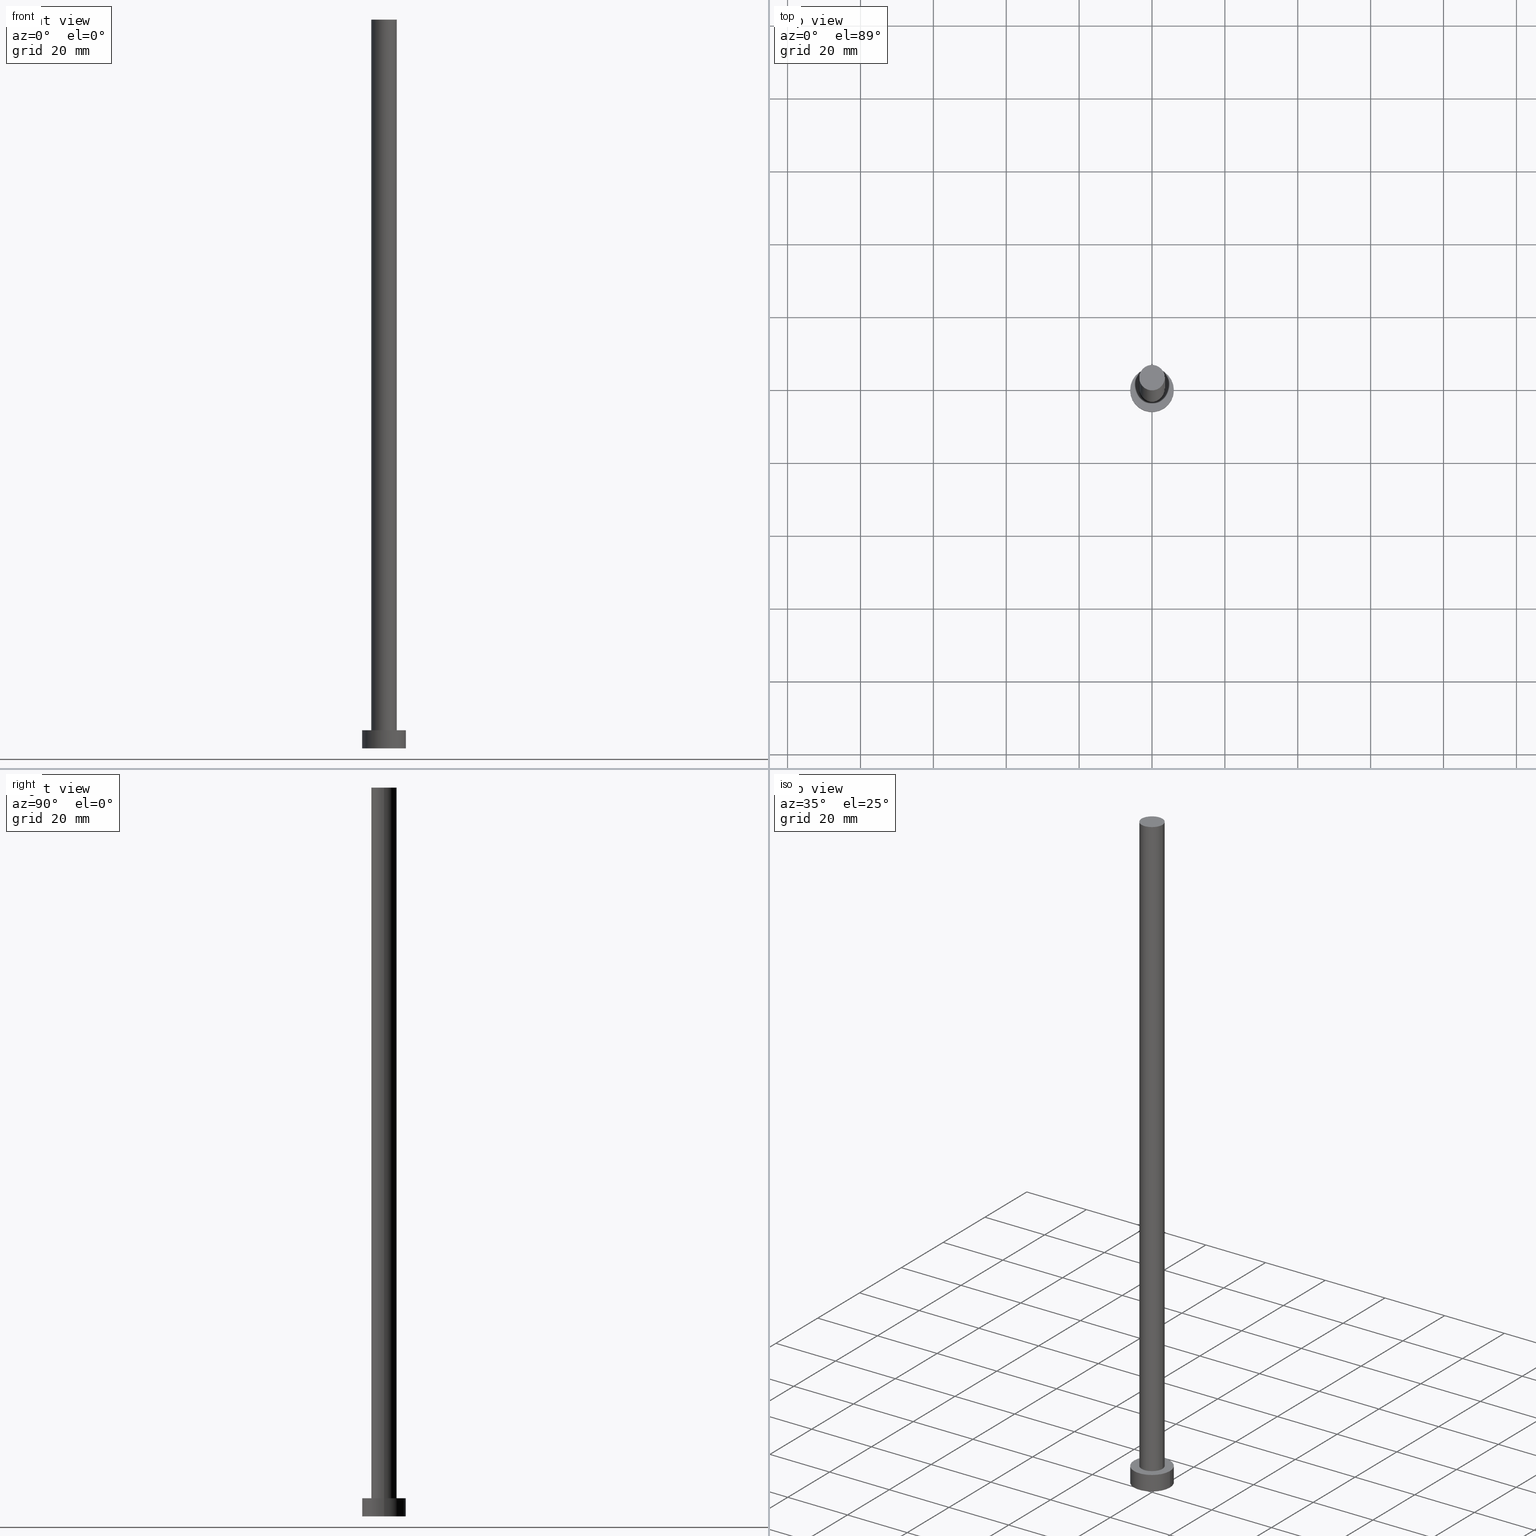
[diagram: canonical four-view strip — front | top / right | iso, engineering-drawing reading convention]
A machine part, canonical four-view strip (front | top / right | iso — engineering-drawing reading convention). The complete STEP part file that produces these views, byte-faithful:
ISO-10303-21;
HEADER;
FILE_DESCRIPTION (( 'STEP AP203' ),
    '1' );
FILE_NAME ('a7fd.STEP',
    '2023-02-13T11:46:37',
    ( '' ),
    ( '' ),
    'SwSTEP 2.0',
    'SolidWorks 2019',
    '' );
FILE_SCHEMA (( 'CONFIG_CONTROL_DESIGN' ));
ENDSEC;

DATA;
#1 = DATE_TIME_ROLE ( 'creation_date' ) ;
#2 = ADVANCED_FACE ( 'NONE', ( #198 ), #80, .F. ) ;
#3 = LOCAL_TIME ( 12, 46, 37.00000000000000000, #124 ) ;
#4 = APPLICATION_CONTEXT ( 'configuration controlled 3d designs of mechanical parts and assemblies' ) ;
#5 = ADVANCED_FACE ( 'NONE', ( #148 ), #231, .T. ) ;
#6 = VECTOR ( 'NONE', #192, 1000.000000000000000 ) ;
#7 = VECTOR ( 'NONE', #95, 1000.000000000000000 ) ;
#8 = COORDINATED_UNIVERSAL_TIME_OFFSET ( 1, 0, .AHEAD. ) ;
#9 = EDGE_CURVE ( 'NONE', #247, #106, #165, .T. ) ;
#10 = COORDINATED_UNIVERSAL_TIME_OFFSET ( 1, 0, .AHEAD. ) ;
#11 = DIRECTION ( 'NONE',  ( 1.000000000000000000, 0.000000000000000000, 0.000000000000000000 ) ) ;
#12 = ORIENTED_EDGE ( 'NONE', *, *, #37, .F. ) ;
#13 = ORIENTED_EDGE ( 'NONE', *, *, #224, .F. ) ;
#14 = CARTESIAN_POINT ( 'NONE',  ( -3.500000000000000000, 0.000000000000000000, 200.0000000000000000 ) ) ;
#15 = CARTESIAN_POINT ( 'NONE',  ( 0.000000000000000000, 0.000000000000000000, 200.0000000000000000 ) ) ;
#16 = VECTOR ( 'NONE', #97, 1000.000000000000000 ) ;
#17 = MECHANICAL_CONTEXT ( 'NONE', #4, 'mechanical' ) ;
#18 = EDGE_LOOP ( 'NONE', ( #39, #12, #77, #28 ) ) ;
#19 = FACE_OUTER_BOUND ( 'NONE', #131, .T. ) ;
#20 = DIRECTION ( 'NONE',  ( -0.000000000000000000, -0.000000000000000000, -1.000000000000000000 ) ) ;
#21 = APPROVAL_DATE_TIME ( #100, #133 ) ;
#22 = APPROVAL_DATE_TIME ( #42, #60 ) ;
#23 = PERSON_AND_ORGANIZATION_ROLE ( 'creator' ) ;
#24 = CIRCLE ( 'NONE', #225, 6.000000000000000888 ) ;
#25 = CARTESIAN_POINT ( 'NONE',  ( 0.000000000000000000, 0.000000000000000000, 0.000000000000000000 ) ) ;
#26 = EDGE_CURVE ( 'NONE', #93, #106, #212, .T. ) ;
#27 = PLANE ( 'NONE',  #45 ) ;
#28 = ORIENTED_EDGE ( 'NONE', *, *, #9, .T. ) ;
#29 = CIRCLE ( 'NONE', #104, 6.000000000000000888 ) ;
#30 = CARTESIAN_POINT ( 'NONE',  ( 0.000000000000000000, 0.000000000000000000, 200.0000000000000000 ) ) ;
#31 = EDGE_CURVE ( 'NONE', #233, #111, #175, .T. ) ;
#32 = FACE_OUTER_BOUND ( 'NONE', #197, .T. ) ;
#33 = CARTESIAN_POINT ( 'NONE',  ( 0.000000000000000000, 0.000000000000000000, 5.000000000000000000 ) ) ;
#34 = CALENDAR_DATE ( 2023, 13, 2 ) ;
#35 = EDGE_LOOP ( 'NONE', ( #245, #157 ) ) ;
#36 = SHAPE_DEFINITION_REPRESENTATION ( #223, #65 ) ;
#37 = EDGE_CURVE ( 'NONE', #150, #93, #66, .T. ) ;
#38 = APPROVAL_ROLE ( '' ) ;
#39 = ORIENTED_EDGE ( 'NONE', *, *, #26, .F. ) ;
#40 = LOCAL_TIME ( 12, 46, 37.00000000000000000, #10 ) ;
#41 = DIRECTION ( 'NONE',  ( 1.000000000000000000, 0.000000000000000000, 0.000000000000000000 ) ) ;
#42 = DATE_AND_TIME ( #144, #219 ) ;
#43 = AXIS2_PLACEMENT_3D ( 'NONE', #173, #228, #46 ) ;
#44 = ADVANCED_FACE ( 'NONE', ( #19 ), #205, .T. ) ;
#45 = AXIS2_PLACEMENT_3D ( 'NONE', #149, #153, #172 ) ;
#46 = DIRECTION ( 'NONE',  ( 1.000000000000000000, 0.000000000000000000, 0.000000000000000000 ) ) ;
#47 = ORIENTED_EDGE ( 'NONE', *, *, #174, .F. ) ;
#48 = LINE ( 'NONE', #89, #7 ) ;
#49 = EDGE_CURVE ( 'NONE', #139, #233, #244, .T. ) ;
#50 = DIRECTION ( 'NONE',  ( 0.000000000000000000, 0.000000000000000000, 1.000000000000000000 ) ) ;
#51 = CARTESIAN_POINT ( 'NONE',  ( 3.500000000000000000, 4.286263797015736595E-16, 200.0000000000000000 ) ) ;
#52 = ORIENTED_EDGE ( 'NONE', *, *, #85, .T. ) ;
#53 = CIRCLE ( 'NONE', #119, 3.500000000000000000 ) ;
#54 = APPLICATION_CONTEXT ( 'configuration controlled 3d designs of mechanical parts and assemblies' ) ;
#55 = LINE ( 'NONE', #151, #101 ) ;
#56 = ORIENTED_EDGE ( 'NONE', *, *, #91, .F. ) ;
#57 = PERSON_AND_ORGANIZATION ( #96, #188 ) ;
#58 = EDGE_LOOP ( 'NONE', ( #13, #47, #250, #138 ) ) ;
#59 = PERSON_AND_ORGANIZATION_ROLE ( 'creator' ) ;
#60 = APPROVAL ( #255, 'NEUR�EN�' ) ;
#61 = CALENDAR_DATE ( 2023, 13, 2 ) ;
#62 = PERSON_AND_ORGANIZATION ( #96, #188 ) ;
#63 = LOCAL_TIME ( 12, 46, 37.00000000000000000, #8 ) ;
#64 = UNCERTAINTY_MEASURE_WITH_UNIT (LENGTH_MEASURE( 1.000000000000000082E-05 ), #234, 'distance_accuracy_value', 'NONE');
#65 = ADVANCED_BREP_SHAPE_REPRESENTATION ( 'a7fd', ( #81, #43 ), #182 ) ;
#66 = CIRCLE ( 'NONE', #217, 3.500000000000000000 ) ;
#67 = CLOSED_SHELL ( 'NONE', ( #44, #5, #120, #129, #2, #76, #160 ) ) ;
#68 = DIRECTION ( 'NONE',  ( -0.000000000000000000, -0.000000000000000000, -1.000000000000000000 ) ) ;
#69 = CC_DESIGN_APPROVAL ( #133, ( #147 ) ) ;
#70 = CC_DESIGN_PERSON_AND_ORGANIZATION_ASSIGNMENT ( #128, #208, ( #147 ) ) ;
#71 = FACE_OUTER_BOUND ( 'NONE', #58, .T. ) ;
#72 = ORIENTED_EDGE ( 'NONE', *, *, #9, .F. ) ;
#73 =( NAMED_UNIT ( * ) SI_UNIT ( $, .STERADIAN. ) SOLID_ANGLE_UNIT ( ) );
#74 = ORIENTED_EDGE ( 'NONE', *, *, #195, .F. ) ;
#75 = AXIS2_PLACEMENT_3D ( 'NONE', #102, #123, #203 ) ;
#76 = ADVANCED_FACE ( 'NONE', ( #161 ), #200, .T. ) ;
#77 = ORIENTED_EDGE ( 'NONE', *, *, #91, .T. ) ;
#78 = APPROVAL_PERSON_ORGANIZATION ( #155, #133, #158 ) ;
#79 = DIRECTION ( 'NONE',  ( -0.000000000000000000, -0.000000000000000000, -1.000000000000000000 ) ) ;
#80 = PLANE ( 'NONE',  #241 ) ;
#81 = MANIFOLD_SOLID_BREP ( 'P�idat vysunut�m3', #67 ) ;
#82 = EDGE_CURVE ( 'NONE', #111, #237, #152, .T. ) ;
#83 = DIRECTION ( 'NONE',  ( -1.000000000000000000, 0.000000000000000000, 0.000000000000000000 ) ) ;
#84 = PERSON_AND_ORGANIZATION ( #96, #188 ) ;
#85 = EDGE_CURVE ( 'NONE', #237, #111, #29, .T. ) ;
#86 = APPROVAL_PERSON_ORGANIZATION ( #84, #180, #239 ) ;
#87 = AXIS2_PLACEMENT_3D ( 'NONE', #184, #177, #41 ) ;
#88 = CC_DESIGN_SECURITY_CLASSIFICATION ( #147, ( #199 ) ) ;
#89 = CARTESIAN_POINT ( 'NONE',  ( 6.000000000000000888, 7.347880794884120722E-16, 5.000000000000000000 ) ) ;
#90 = DIRECTION ( 'NONE',  ( 1.000000000000000000, 0.000000000000000000, -0.000000000000000000 ) ) ;
#91 = EDGE_CURVE ( 'NONE', #150, #247, #55, .T. ) ;
#92 = APPLICATION_PROTOCOL_DEFINITION ( 'international standard', 'config_control_design', 1994, #4 ) ;
#93 = VERTEX_POINT ( 'NONE', #51 ) ;
#94 = EDGE_LOOP ( 'NONE', ( #72, #154 ) ) ;
#95 = DIRECTION ( 'NONE',  ( -0.000000000000000000, -0.000000000000000000, -1.000000000000000000 ) ) ;
#96 = PERSON ( 'NEUR�EN�', 'NEUR�EN�', 'NEUR�EN�', ('NEUR�EN�'), ('NEUR�EN�'), ('NEUR�EN�') ) ;
#97 = DIRECTION ( 'NONE',  ( -0.000000000000000000, -0.000000000000000000, -1.000000000000000000 ) ) ;
#98 = DIRECTION ( 'NONE',  ( 0.000000000000000000, 0.000000000000000000, 1.000000000000000000 ) ) ;
#99 = CARTESIAN_POINT ( 'NONE',  ( 0.000000000000000000, 0.000000000000000000, 0.000000000000000000 ) ) ;
#100 = DATE_AND_TIME ( #34, #40 ) ;
#101 = VECTOR ( 'NONE', #168, 1000.000000000000000 ) ;
#102 = CARTESIAN_POINT ( 'NONE',  ( 0.000000000000000000, 0.000000000000000000, 0.000000000000000000 ) ) ;
#103 = CC_DESIGN_APPROVAL ( #180, ( #199 ) ) ;
#104 = AXIS2_PLACEMENT_3D ( 'NONE', #25, #105, #226 ) ;
#105 = DIRECTION ( 'NONE',  ( 0.000000000000000000, 0.000000000000000000, 1.000000000000000000 ) ) ;
#106 = VERTEX_POINT ( 'NONE', #110 ) ;
#107 = AXIS2_PLACEMENT_3D ( 'NONE', #130, #137, #193 ) ;
#108 = DATE_AND_TIME ( #220, #63 ) ;
#109 = CARTESIAN_POINT ( 'NONE',  ( 0.000000000000000000, 0.000000000000000000, 5.000000000000000000 ) ) ;
#110 = CARTESIAN_POINT ( 'NONE',  ( 3.500000000000000000, 4.286263797015736595E-16, 5.000000000000000000 ) ) ;
#111 = VERTEX_POINT ( 'NONE', #135 ) ;
#112 = DIRECTION ( 'NONE',  ( 1.000000000000000000, 0.000000000000000000, -0.000000000000000000 ) ) ;
#113 = CARTESIAN_POINT ( 'NONE',  ( -6.000000000000000888, 0.000000000000000000, 5.000000000000000000 ) ) ;
#114 = CARTESIAN_POINT ( 'NONE',  ( 6.000000000000000888, 7.347880794884120722E-16, 5.000000000000000000 ) ) ;
#115 = DIRECTION ( 'NONE',  ( -1.000000000000000000, 0.000000000000000000, 0.000000000000000000 ) ) ;
#116 = ORIENTED_EDGE ( 'NONE', *, *, #207, .T. ) ;
#117 = COORDINATED_UNIVERSAL_TIME_OFFSET ( 1, 0, .AHEAD. ) ;
#118 = ORIENTED_EDGE ( 'NONE', *, *, #82, .F. ) ;
#119 = AXIS2_PLACEMENT_3D ( 'NONE', #189, #196, #236 ) ;
#120 = ADVANCED_FACE ( 'NONE', ( #71 ), #246, .T. ) ;
#121 = DATE_TIME_ROLE ( 'classification_date' ) ;
#122 = AXIS2_PLACEMENT_3D ( 'NONE', #141, #143, #142 ) ;
#123 = DIRECTION ( 'NONE',  ( 0.000000000000000000, 0.000000000000000000, 1.000000000000000000 ) ) ;
#124 = COORDINATED_UNIVERSAL_TIME_OFFSET ( 1, 0, .AHEAD. ) ;
#125 = DIRECTION ( 'NONE',  ( 1.000000000000000000, 0.000000000000000000, 0.000000000000000000 ) ) ;
#126 = PERSON_AND_ORGANIZATION_ROLE ( 'design_supplier' ) ;
#127 = DESIGN_CONTEXT ( 'detailed design', #54, 'design' ) ;
#128 = PERSON_AND_ORGANIZATION ( #96, #188 ) ;
#129 = ADVANCED_FACE ( 'NONE', ( #132, #32 ), #27, .T. ) ;
#130 = CARTESIAN_POINT ( 'NONE',  ( 0.000000000000000000, 0.000000000000000000, 5.000000000000000000 ) ) ;
#131 = EDGE_LOOP ( 'NONE', ( #74, #249, #116, #56 ) ) ;
#132 = FACE_BOUND ( 'NONE', #94, .T. ) ;
#133 = APPROVAL ( #215, 'NEUR�EN�' ) ;
#134 = ORIENTED_EDGE ( 'NONE', *, *, #224, .T. ) ;
#135 = CARTESIAN_POINT ( 'NONE',  ( -6.000000000000000888, 0.000000000000000000, 0.000000000000000000 ) ) ;
#136 = ORIENTED_EDGE ( 'NONE', *, *, #31, .F. ) ;
#137 = DIRECTION ( 'NONE',  ( 0.000000000000000000, 0.000000000000000000, 1.000000000000000000 ) ) ;
#138 = ORIENTED_EDGE ( 'NONE', *, *, #82, .T. ) ;
#139 = VERTEX_POINT ( 'NONE', #114 ) ;
#140 = CC_DESIGN_PERSON_AND_ORGANIZATION_ASSIGNMENT ( #202, #59, ( #254 ) ) ;
#141 = CARTESIAN_POINT ( 'NONE',  ( 0.000000000000000000, 0.000000000000000000, 200.0000000000000000 ) ) ;
#142 = DIRECTION ( 'NONE',  ( -1.000000000000000000, 0.000000000000000000, 0.000000000000000000 ) ) ;
#143 = DIRECTION ( 'NONE',  ( -0.000000000000000000, -0.000000000000000000, -1.000000000000000000 ) ) ;
#144 = CALENDAR_DATE ( 2023, 13, 2 ) ;
#145 = LOCAL_TIME ( 12, 46, 37.00000000000000000, #181 ) ;
#146 = CC_DESIGN_DATE_AND_TIME_ASSIGNMENT ( #108, #121, ( #147 ) ) ;
#147 = SECURITY_CLASSIFICATION ( '', '', #166 ) ;
#148 = FACE_OUTER_BOUND ( 'NONE', #216, .T. ) ;
#149 = CARTESIAN_POINT ( 'NONE',  ( 0.000000000000000000, 0.000000000000000000, 5.000000000000000000 ) ) ;
#150 = VERTEX_POINT ( 'NONE', #14 ) ;
#151 = CARTESIAN_POINT ( 'NONE',  ( -3.500000000000000000, 0.000000000000000000, 200.0000000000000000 ) ) ;
#152 = CIRCLE ( 'NONE', #75, 6.000000000000000888 ) ;
#153 = DIRECTION ( 'NONE',  ( 0.000000000000000000, 0.000000000000000000, 1.000000000000000000 ) ) ;
#154 = ORIENTED_EDGE ( 'NONE', *, *, #207, .F. ) ;
#155 = PERSON_AND_ORGANIZATION ( #96, #188 ) ;
#156 = DIRECTION ( 'NONE',  ( 0.000000000000000000, 0.000000000000000000, 1.000000000000000000 ) ) ;
#157 = ORIENTED_EDGE ( 'NONE', *, *, #195, .T. ) ;
#158 = APPROVAL_ROLE ( '' ) ;
#159 = APPLICATION_PROTOCOL_DEFINITION ( 'international standard', 'config_control_design', 1994, #54 ) ;
#160 = ADVANCED_FACE ( 'NONE', ( #213 ), #230, .T. ) ;
#161 = FACE_OUTER_BOUND ( 'NONE', #18, .T. ) ;
#162 = CALENDAR_DATE ( 2023, 13, 2 ) ;
#163 = CC_DESIGN_APPROVAL ( #60, ( #254 ) ) ;
#164 = CC_DESIGN_PERSON_AND_ORGANIZATION_ASSIGNMENT ( #62, #23, ( #199 ) ) ;
#165 = CIRCLE ( 'NONE', #186, 3.500000000000000000 ) ;
#166 = SECURITY_CLASSIFICATION_LEVEL ( 'unclassified' ) ;
#167 = CARTESIAN_POINT ( 'NONE',  ( 6.000000000000000888, 7.347880794884120722E-16, 0.000000000000000000 ) ) ;
#168 = DIRECTION ( 'NONE',  ( -0.000000000000000000, -0.000000000000000000, -1.000000000000000000 ) ) ;
#169 = ORIENTED_EDGE ( 'NONE', *, *, #49, .T. ) ;
#170 =( NAMED_UNIT ( * ) PLANE_ANGLE_UNIT ( ) SI_UNIT ( $, .RADIAN. ) );
#171 = EDGE_LOOP ( 'NONE', ( #118, #235 ) ) ;
#172 = DIRECTION ( 'NONE',  ( 1.000000000000000000, 0.000000000000000000, -0.000000000000000000 ) ) ;
#173 = CARTESIAN_POINT ( 'NONE',  ( 0.000000000000000000, 0.000000000000000000, 0.000000000000000000 ) ) ;
#174 = EDGE_CURVE ( 'NONE', #233, #139, #24, .T. ) ;
#175 = LINE ( 'NONE', #113, #16 ) ;
#176 = DATE_AND_TIME ( #162, #145 ) ;
#177 = DIRECTION ( 'NONE',  ( 0.000000000000000000, 0.000000000000000000, 1.000000000000000000 ) ) ;
#178 = PERSON_AND_ORGANIZATION ( #96, #188 ) ;
#179 = AXIS2_PLACEMENT_3D ( 'NONE', #201, #20, #83 ) ;
#180 = APPROVAL ( #183, 'NEUR�EN�' ) ;
#181 = COORDINATED_UNIVERSAL_TIME_OFFSET ( 1, 0, .AHEAD. ) ;
#182 =( GEOMETRIC_REPRESENTATION_CONTEXT ( 3 ) GLOBAL_UNCERTAINTY_ASSIGNED_CONTEXT ( ( #64 ) ) GLOBAL_UNIT_ASSIGNED_CONTEXT ( ( #234, #170, #73 ) ) REPRESENTATION_CONTEXT ( 'NONE', 'WORKASPACE' ) );
#183 = APPROVAL_STATUS ( 'not_yet_approved' ) ;
#184 = CARTESIAN_POINT ( 'NONE',  ( 0.000000000000000000, 0.000000000000000000, 5.000000000000000000 ) ) ;
#185 = PERSON_AND_ORGANIZATION ( #96, #188 ) ;
#186 = AXIS2_PLACEMENT_3D ( 'NONE', #194, #50, #229 ) ;
#187 = CC_DESIGN_DATE_AND_TIME_ASSIGNMENT ( #176, #1, ( #254 ) ) ;
#188 = ORGANIZATION ( 'NEUR�EN�', 'NEUR�EN�', '' ) ;
#189 = CARTESIAN_POINT ( 'NONE',  ( 0.000000000000000000, 0.000000000000000000, 200.0000000000000000 ) ) ;
#190 = ORIENTED_EDGE ( 'NONE', *, *, #174, .T. ) ;
#191 = CIRCLE ( 'NONE', #107, 3.500000000000000000 ) ;
#192 = DIRECTION ( 'NONE',  ( -0.000000000000000000, -0.000000000000000000, -1.000000000000000000 ) ) ;
#193 = DIRECTION ( 'NONE',  ( 1.000000000000000000, 0.000000000000000000, 0.000000000000000000 ) ) ;
#194 = CARTESIAN_POINT ( 'NONE',  ( 0.000000000000000000, 0.000000000000000000, 5.000000000000000000 ) ) ;
#195 = EDGE_CURVE ( 'NONE', #93, #150, #53, .T. ) ;
#196 = DIRECTION ( 'NONE',  ( 0.000000000000000000, 0.000000000000000000, 1.000000000000000000 ) ) ;
#197 = EDGE_LOOP ( 'NONE', ( #190, #169 ) ) ;
#198 = FACE_OUTER_BOUND ( 'NONE', #171, .T. ) ;
#199 = PRODUCT_DEFINITION_FORMATION_WITH_SPECIFIED_SOURCE ( 'LIBOVOLN�', '', #204, .NOT_KNOWN. ) ;
#200 = CYLINDRICAL_SURFACE ( 'NONE', #179, 3.500000000000000000 ) ;
#201 = CARTESIAN_POINT ( 'NONE',  ( 0.000000000000000000, 0.000000000000000000, 200.0000000000000000 ) ) ;
#202 = PERSON_AND_ORGANIZATION ( #96, #188 ) ;
#203 = DIRECTION ( 'NONE',  ( 1.000000000000000000, 0.000000000000000000, 0.000000000000000000 ) ) ;
#204 = PRODUCT ( 'a7fd', 'a7fd', '', ( #17 ) ) ;
#205 = CYLINDRICAL_SURFACE ( 'NONE', #122, 3.500000000000000000 ) ;
#206 = PRODUCT_RELATED_PRODUCT_CATEGORY ( 'detail', '', ( #204 ) ) ;
#207 = EDGE_CURVE ( 'NONE', #106, #247, #191, .T. ) ;
#208 = PERSON_AND_ORGANIZATION_ROLE ( 'classification_officer' ) ;
#209 = APPROVAL_PERSON_ORGANIZATION ( #178, #60, #38 ) ;
#210 = CARTESIAN_POINT ( 'NONE',  ( 0.000000000000000000, 0.000000000000000000, 5.000000000000000000 ) ) ;
#211 = CARTESIAN_POINT ( 'NONE',  ( -6.000000000000000888, 0.000000000000000000, 5.000000000000000000 ) ) ;
#212 = LINE ( 'NONE', #253, #6 ) ;
#213 = FACE_OUTER_BOUND ( 'NONE', #35, .T. ) ;
#214 = DIRECTION ( 'NONE',  ( 0.000000000000000000, 0.000000000000000000, 1.000000000000000000 ) ) ;
#215 = APPROVAL_STATUS ( 'not_yet_approved' ) ;
#216 = EDGE_LOOP ( 'NONE', ( #218, #134, #52, #136 ) ) ;
#217 = AXIS2_PLACEMENT_3D ( 'NONE', #15, #238, #125 ) ;
#218 = ORIENTED_EDGE ( 'NONE', *, *, #49, .F. ) ;
#219 = LOCAL_TIME ( 12, 46, 37.00000000000000000, #117 ) ;
#220 = CALENDAR_DATE ( 2023, 13, 2 ) ;
#221 = PERSON_AND_ORGANIZATION_ROLE ( 'design_owner' ) ;
#222 = APPROVAL_DATE_TIME ( #240, #180 ) ;
#223 = PRODUCT_DEFINITION_SHAPE ( 'NONE', 'NONE',  #254 ) ;
#224 = EDGE_CURVE ( 'NONE', #139, #237, #48, .T. ) ;
#225 = AXIS2_PLACEMENT_3D ( 'NONE', #210, #98, #11 ) ;
#226 = DIRECTION ( 'NONE',  ( 1.000000000000000000, 0.000000000000000000, 0.000000000000000000 ) ) ;
#227 = AXIS2_PLACEMENT_3D ( 'NONE', #30, #156, #112 ) ;
#228 = DIRECTION ( 'NONE',  ( 0.000000000000000000, 0.000000000000000000, 1.000000000000000000 ) ) ;
#229 = DIRECTION ( 'NONE',  ( 1.000000000000000000, 0.000000000000000000, 0.000000000000000000 ) ) ;
#230 = PLANE ( 'NONE',  #227 ) ;
#231 = CYLINDRICAL_SURFACE ( 'NONE', #232, 6.000000000000000888 ) ;
#232 = AXIS2_PLACEMENT_3D ( 'NONE', #33, #68, #115 ) ;
#233 = VERTEX_POINT ( 'NONE', #211 ) ;
#234 =( LENGTH_UNIT ( ) NAMED_UNIT ( * ) SI_UNIT ( .MILLI., .METRE. ) );
#235 = ORIENTED_EDGE ( 'NONE', *, *, #85, .F. ) ;
#236 = DIRECTION ( 'NONE',  ( 1.000000000000000000, 0.000000000000000000, 0.000000000000000000 ) ) ;
#237 = VERTEX_POINT ( 'NONE', #167 ) ;
#238 = DIRECTION ( 'NONE',  ( 0.000000000000000000, 0.000000000000000000, 1.000000000000000000 ) ) ;
#239 = APPROVAL_ROLE ( '' ) ;
#240 = DATE_AND_TIME ( #61, #3 ) ;
#241 = AXIS2_PLACEMENT_3D ( 'NONE', #99, #214, #90 ) ;
#242 = CC_DESIGN_PERSON_AND_ORGANIZATION_ASSIGNMENT ( #185, #221, ( #204 ) ) ;
#243 = CC_DESIGN_PERSON_AND_ORGANIZATION_ASSIGNMENT ( #57, #126, ( #199 ) ) ;
#244 = CIRCLE ( 'NONE', #87, 6.000000000000000888 ) ;
#245 = ORIENTED_EDGE ( 'NONE', *, *, #37, .T. ) ;
#246 = CYLINDRICAL_SURFACE ( 'NONE', #251, 6.000000000000000888 ) ;
#247 = VERTEX_POINT ( 'NONE', #248 ) ;
#248 = CARTESIAN_POINT ( 'NONE',  ( -3.500000000000000000, 0.000000000000000000, 5.000000000000000000 ) ) ;
#249 = ORIENTED_EDGE ( 'NONE', *, *, #26, .T. ) ;
#250 = ORIENTED_EDGE ( 'NONE', *, *, #31, .T. ) ;
#251 = AXIS2_PLACEMENT_3D ( 'NONE', #109, #79, #252 ) ;
#252 = DIRECTION ( 'NONE',  ( -1.000000000000000000, 0.000000000000000000, 0.000000000000000000 ) ) ;
#253 = CARTESIAN_POINT ( 'NONE',  ( 3.500000000000000000, 4.286263797015736595E-16, 200.0000000000000000 ) ) ;
#254 = PRODUCT_DEFINITION ( 'NEZN�M�', '', #199, #127 ) ;
#255 = APPROVAL_STATUS ( 'not_yet_approved' ) ;
ENDSEC;
END-ISO-10303-21;
